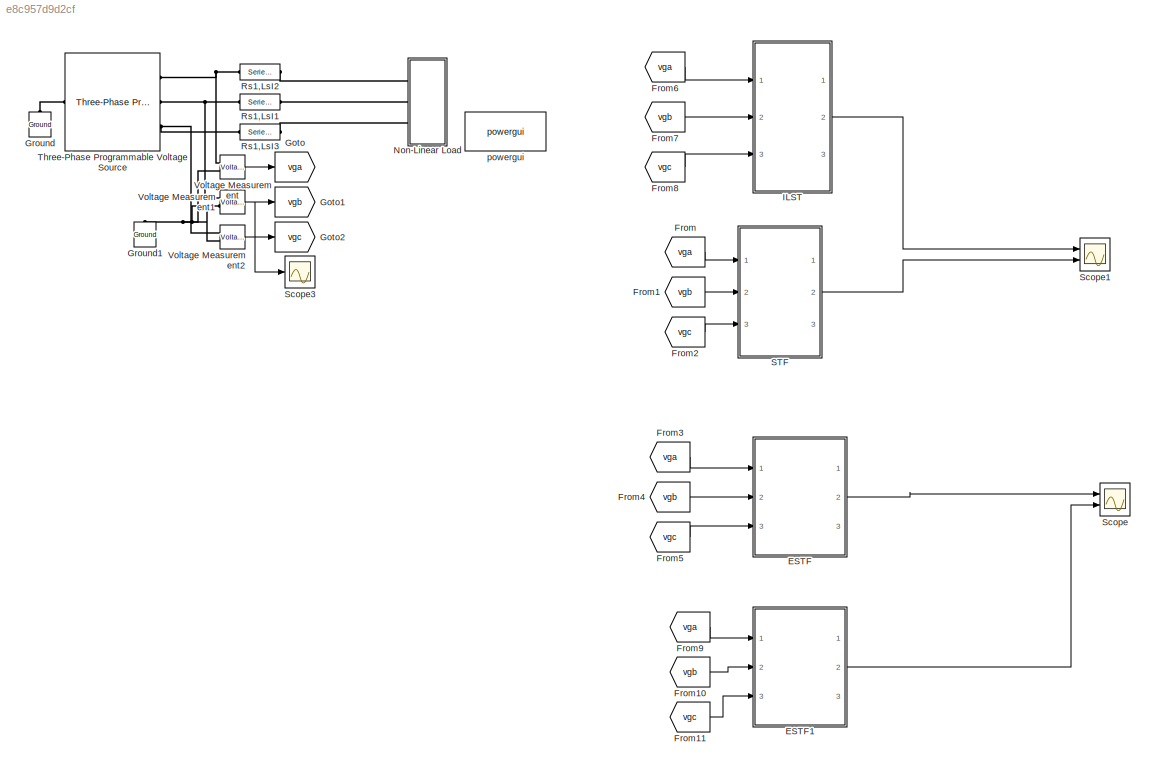
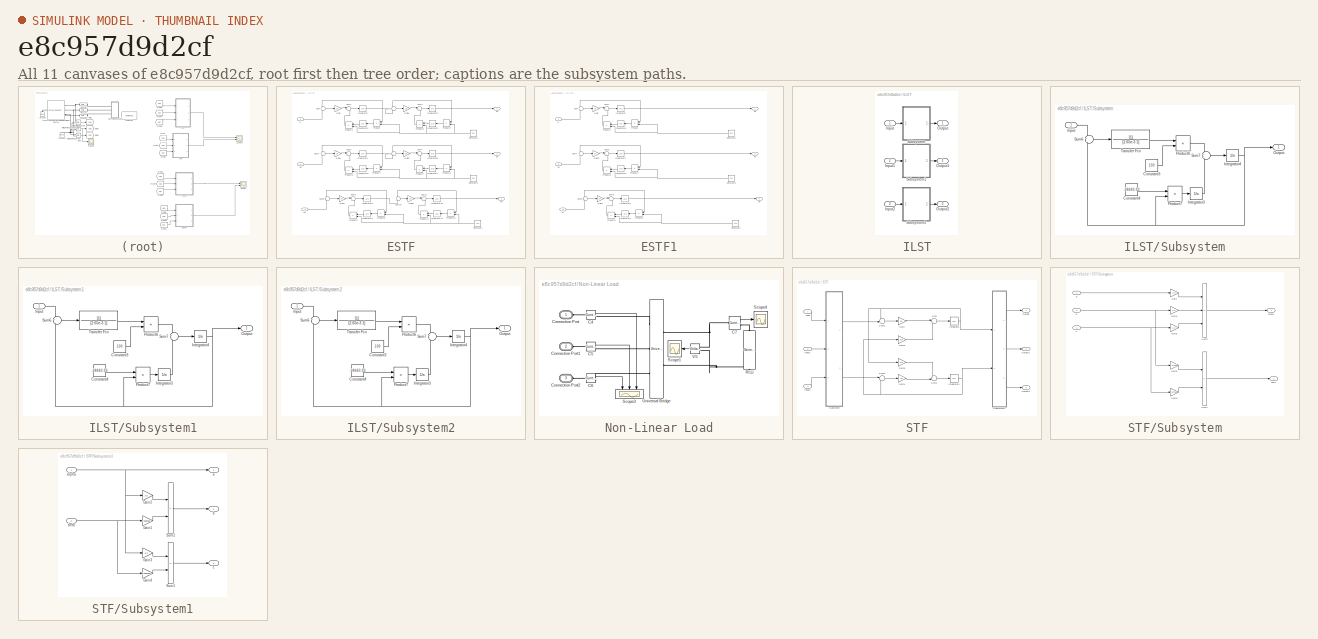
[diagram: thumbnail index - all 11 canvases of the model, root first then tree order]
MODEL slx_e8c957d9d2cf
KIND model
CONFIG AbsTol = auto
CONFIG EnableMultiTasking = off
CONFIG FixedStep = auto
CONFIG MaxStep = auto
CONFIG MinStep = auto
CONFIG RelTol = 1e-3
CONFIG SampleTimeConstraint = Unconstrained
CONFIG SolverName = VariableStepAuto
CONFIG StartTime = 0.0
CONFIG StopTime = 3
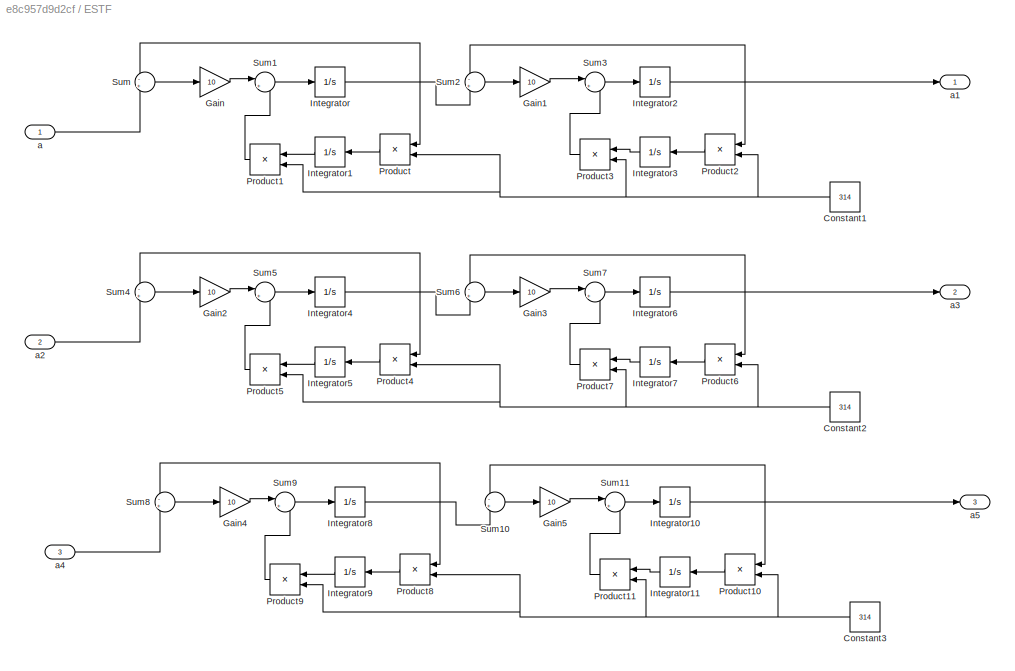
BLOCK [SubSystem] ESTF
  Ports = [3, 3]
  RequestExecContextInheritance = off
BLOCK [Constant] ESTF/Constant1
  NameLocation = top
  Value = 314
BLOCK [Constant] ESTF/Constant2
  NameLocation = top
  Value = 314
BLOCK [Constant] ESTF/Constant3
  NameLocation = top
  Value = 314
BLOCK [Gain] ESTF/Gain
  Gain = 10
BLOCK [Gain] ESTF/Gain1
  Gain = 10
BLOCK [Gain] ESTF/Gain2
  Gain = 10
BLOCK [Gain] ESTF/Gain3
  Gain = 10
BLOCK [Gain] ESTF/Gain4
  Gain = 10
BLOCK [Gain] ESTF/Gain5
  Gain = 10
BLOCK [Integrator] ESTF/Integrator
  Ports = [1, 1]
BLOCK [Integrator] ESTF/Integrator1
  NameLocation = top
  Ports = [1, 1]
BLOCK [Integrator] ESTF/Integrator10
  Ports = [1, 1]
BLOCK [Integrator] ESTF/Integrator11
  NameLocation = top
  Ports = [1, 1]
BLOCK [Integrator] ESTF/Integrator2
  Ports = [1, 1]
BLOCK [Integrator] ESTF/Integrator3
  NameLocation = top
  Ports = [1, 1]
BLOCK [Integrator] ESTF/Integrator4
  Ports = [1, 1]
BLOCK [Integrator] ESTF/Integrator5
  NameLocation = top
  Ports = [1, 1]
BLOCK [Integrator] ESTF/Integrator6
  Ports = [1, 1]
BLOCK [Integrator] ESTF/Integrator7
  NameLocation = top
  Ports = [1, 1]
BLOCK [Integrator] ESTF/Integrator8
  Ports = [1, 1]
BLOCK [Integrator] ESTF/Integrator9
  NameLocation = top
  Ports = [1, 1]
BLOCK [Product] ESTF/Product
  NameLocation = top
  Ports = [2, 1]
BLOCK [Product] ESTF/Product1
  NameLocation = top
  Ports = [2, 1]
BLOCK [Product] ESTF/Product10
  NameLocation = top
  Ports = [2, 1]
BLOCK [Product] ESTF/Product11
  NameLocation = top
  Ports = [2, 1]
BLOCK [Product] ESTF/Product2
  NameLocation = top
  Ports = [2, 1]
BLOCK [Product] ESTF/Product3
  NameLocation = top
  Ports = [2, 1]
BLOCK [Product] ESTF/Product4
  NameLocation = top
  Ports = [2, 1]
BLOCK [Product] ESTF/Product5
  NameLocation = top
  Ports = [2, 1]
BLOCK [Product] ESTF/Product6
  NameLocation = top
  Ports = [2, 1]
BLOCK [Product] ESTF/Product7
  NameLocation = top
  Ports = [2, 1]
BLOCK [Product] ESTF/Product8
  NameLocation = top
  Ports = [2, 1]
BLOCK [Product] ESTF/Product9
  NameLocation = top
  Ports = [2, 1]
BLOCK [Sum] ESTF/Sum
  Inputs = -+
  Ports = [2, 1]
BLOCK [Sum] ESTF/Sum1
  Inputs = |+-
  Ports = [2, 1]
BLOCK [Sum] ESTF/Sum10
  Inputs = -+
  Ports = [2, 1]
BLOCK [Sum] ESTF/Sum11
  Inputs = |+-
  Ports = [2, 1]
BLOCK [Sum] ESTF/Sum2
  Inputs = -+
  Ports = [2, 1]
BLOCK [Sum] ESTF/Sum3
  Inputs = |+-
  Ports = [2, 1]
BLOCK [Sum] ESTF/Sum4
  Inputs = -+
  Ports = [2, 1]
BLOCK [Sum] ESTF/Sum5
  Inputs = |+-
  Ports = [2, 1]
BLOCK [Sum] ESTF/Sum6
  Inputs = -+
  Ports = [2, 1]
BLOCK [Sum] ESTF/Sum7
  Inputs = |+-
  Ports = [2, 1]
BLOCK [Sum] ESTF/Sum8
  Inputs = -+
  Ports = [2, 1]
BLOCK [Sum] ESTF/Sum9
  Inputs = |+-
  Ports = [2, 1]
BLOCK [Inport] ESTF/a
BLOCK [Outport] ESTF/a1
BLOCK [Inport] ESTF/a2
  Port = 2
BLOCK [Outport] ESTF/a3
  Port = 2
BLOCK [Inport] ESTF/a4
  Port = 3
BLOCK [Outport] ESTF/a5
  Port = 3
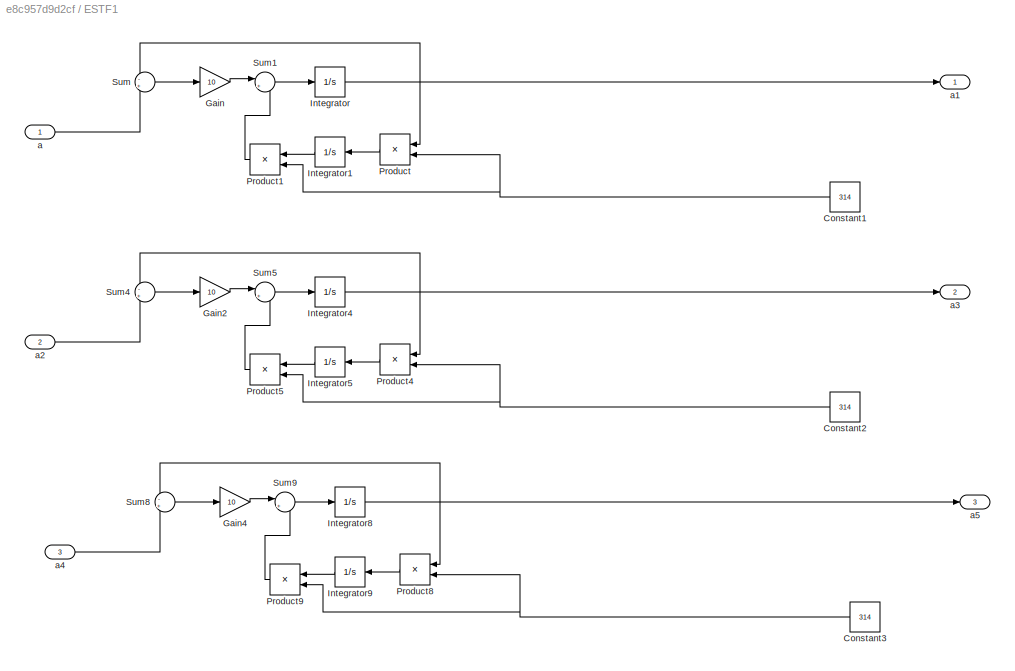
BLOCK [SubSystem] ESTF1
  Ports = [3, 3]
  RequestExecContextInheritance = off
BLOCK [Constant] ESTF1/Constant1
  NameLocation = top
  Value = 314
BLOCK [Constant] ESTF1/Constant2
  NameLocation = top
  Value = 314
BLOCK [Constant] ESTF1/Constant3
  NameLocation = top
  Value = 314
BLOCK [Gain] ESTF1/Gain
  Gain = 10
BLOCK [Gain] ESTF1/Gain2
  Gain = 10
BLOCK [Gain] ESTF1/Gain4
  Gain = 10
BLOCK [Integrator] ESTF1/Integrator
  Ports = [1, 1]
BLOCK [Integrator] ESTF1/Integrator1
  NameLocation = top
  Ports = [1, 1]
BLOCK [Integrator] ESTF1/Integrator4
  Ports = [1, 1]
BLOCK [Integrator] ESTF1/Integrator5
  NameLocation = top
  Ports = [1, 1]
BLOCK [Integrator] ESTF1/Integrator8
  Ports = [1, 1]
BLOCK [Integrator] ESTF1/Integrator9
  NameLocation = top
  Ports = [1, 1]
BLOCK [Product] ESTF1/Product
  NameLocation = top
  Ports = [2, 1]
BLOCK [Product] ESTF1/Product1
  NameLocation = top
  Ports = [2, 1]
BLOCK [Product] ESTF1/Product4
  NameLocation = top
  Ports = [2, 1]
BLOCK [Product] ESTF1/Product5
  NameLocation = top
  Ports = [2, 1]
BLOCK [Product] ESTF1/Product8
  NameLocation = top
  Ports = [2, 1]
BLOCK [Product] ESTF1/Product9
  NameLocation = top
  Ports = [2, 1]
BLOCK [Sum] ESTF1/Sum
  Inputs = -+
  Ports = [2, 1]
BLOCK [Sum] ESTF1/Sum1
  Inputs = |+-
  Ports = [2, 1]
BLOCK [Sum] ESTF1/Sum4
  Inputs = -+
  Ports = [2, 1]
BLOCK [Sum] ESTF1/Sum5
  Inputs = |+-
  Ports = [2, 1]
BLOCK [Sum] ESTF1/Sum8
  Inputs = -+
  Ports = [2, 1]
BLOCK [Sum] ESTF1/Sum9
  Inputs = |+-
  Ports = [2, 1]
BLOCK [Inport] ESTF1/a
BLOCK [Outport] ESTF1/a1
BLOCK [Inport] ESTF1/a2
  Port = 2
BLOCK [Outport] ESTF1/a3
  Port = 2
BLOCK [Inport] ESTF1/a4
  Port = 3
BLOCK [Outport] ESTF1/a5
  Port = 3
BLOCK [From] From
  GotoTag = vga
BLOCK [From] From1
  GotoTag = vgb
BLOCK [From] From10
  GotoTag = vgb
BLOCK [From] From11
  GotoTag = vgc
BLOCK [From] From2
  GotoTag = vgc
BLOCK [From] From3
  GotoTag = vga
BLOCK [From] From4
  GotoTag = vgb
BLOCK [From] From5
  GotoTag = vgc
BLOCK [From] From6
  GotoTag = vga
BLOCK [From] From7
  GotoTag = vgb
BLOCK [From] From8
  GotoTag = vgc
BLOCK [From] From9
  GotoTag = vga
BLOCK [Goto] Goto
  GotoTag = vga
BLOCK [Goto] Goto1
  GotoTag = vgb
BLOCK [Goto] Goto2
  GotoTag = vgc
BLOCK [Reference] Ground  REF=spsGroundLib/Ground
  NameLocation = right
  Ports = [0, 0, 0, 0, 0, 1]
  SourceBlock = spsGroundLib/Ground
  SourceProductBaseCode = PS
  SourceType = Ground
BLOCK [Reference] Ground1  REF=spsGroundLib/Ground
  NameLocation = right
  Ports = [0, 0, 0, 0, 0, 1]
  SourceBlock = spsGroundLib/Ground
  SourceProductBaseCode = PS
  SourceType = Ground
BLOCK [SubSystem] ILST
  Ports = [3, 3]
  RequestExecContextInheritance = off
BLOCK [Inport] ILST/Input
BLOCK [Inport] ILST/Input1
  Port = 2
BLOCK [Inport] ILST/Input2
  Port = 3
BLOCK [Outport] ILST/Output
BLOCK [Outport] ILST/Output1
  Port = 2
BLOCK [Outport] ILST/Output2
  Port = 3
BLOCK [SubSystem] ILST/Subsystem
  Ports = [1, 1]
  RequestExecContextInheritance = off
BLOCK [Constant] ILST/Subsystem/Constant3
  Value = 100
BLOCK [Constant] ILST/Subsystem/Constant4
  Value = -98683.93
BLOCK [Inport] ILST/Subsystem/Input
BLOCK [Integrator] ILST/Subsystem/Integrator3
  Ports = [1, 1]
BLOCK [Integrator] ILST/Subsystem/Integrator4
  Ports = [1, 1]
BLOCK [Outport] ILST/Subsystem/Output
BLOCK [Product] ILST/Subsystem/Product6
  Ports = [2, 1]
  RndMeth = Zero
BLOCK [Product] ILST/Subsystem/Product7
  Ports = [2, 1]
  RndMeth = Zero
BLOCK [Sum] ILST/Subsystem/Sum6
  Inputs = +-
  Ports = [2, 1]
BLOCK [Sum] ILST/Subsystem/Sum7
  Ports = [2, 1]
BLOCK [TransferFcn] ILST/Subsystem/Transfer Fcn
  Denominator = [2.65e-3 1]
BLOCK [SubSystem] ILST/Subsystem1
  Ports = [1, 1]
  RequestExecContextInheritance = off
BLOCK [Constant] ILST/Subsystem1/Constant3
  Value = 100
BLOCK [Constant] ILST/Subsystem1/Constant4
  Value = -98683.93
BLOCK [Inport] ILST/Subsystem1/Input
BLOCK [Integrator] ILST/Subsystem1/Integrator3
  Ports = [1, 1]
BLOCK [Integrator] ILST/Subsystem1/Integrator4
  Ports = [1, 1]
BLOCK [Outport] ILST/Subsystem1/Output
BLOCK [Product] ILST/Subsystem1/Product6
  Ports = [2, 1]
  RndMeth = Zero
BLOCK [Product] ILST/Subsystem1/Product7
  Ports = [2, 1]
  RndMeth = Zero
BLOCK [Sum] ILST/Subsystem1/Sum6
  Inputs = +-
  Ports = [2, 1]
BLOCK [Sum] ILST/Subsystem1/Sum7
  Ports = [2, 1]
BLOCK [TransferFcn] ILST/Subsystem1/Transfer Fcn
  Denominator = [2.65e-3 1]
BLOCK [SubSystem] ILST/Subsystem2
  Ports = [1, 1]
  RequestExecContextInheritance = off
BLOCK [Constant] ILST/Subsystem2/Constant3
  Value = 100
BLOCK [Constant] ILST/Subsystem2/Constant4
  Value = -98683.93
BLOCK [Inport] ILST/Subsystem2/Input
BLOCK [Integrator] ILST/Subsystem2/Integrator3
  Ports = [1, 1]
BLOCK [Integrator] ILST/Subsystem2/Integrator4
  Ports = [1, 1]
BLOCK [Outport] ILST/Subsystem2/Output
BLOCK [Product] ILST/Subsystem2/Product6
  Ports = [2, 1]
  RndMeth = Zero
BLOCK [Product] ILST/Subsystem2/Product7
  Ports = [2, 1]
  RndMeth = Zero
BLOCK [Sum] ILST/Subsystem2/Sum6
  Inputs = +-
  Ports = [2, 1]
BLOCK [Sum] ILST/Subsystem2/Sum7
  Ports = [2, 1]
BLOCK [TransferFcn] ILST/Subsystem2/Transfer Fcn
  Denominator = [2.65e-3 1]
BLOCK [SubSystem] Non-Linear Load
  Ports = [0, 0, 0, 0, 0, 3]
  RequestExecContextInheritance = off
BLOCK [Reference] Non-Linear Load/C4  REF=spsCurrentMeasurementLib/Current Measurement
  Ports = [0, 1, 0, 0, 0, 1, 1]
  SourceBlock = spsCurrentMeasurementLib/Current Measurement
  SourceProductBaseCode = PS
  SourceType = Current Measurement
BLOCK [Reference] Non-Linear Load/C5  REF=spsCurrentMeasurementLib/Current Measurement
  Ports = [0, 1, 0, 0, 0, 1, 1]
  SourceBlock = spsCurrentMeasurementLib/Current Measurement
  SourceProductBaseCode = PS
  SourceType = Current Measurement
BLOCK [Reference] Non-Linear Load/C6  REF=spsCurrentMeasurementLib/Current Measurement
  Ports = [0, 1, 0, 0, 0, 1, 1]
  SourceBlock = spsCurrentMeasurementLib/Current Measurement
  SourceProductBaseCode = PS
  SourceType = Current Measurement
BLOCK [Reference] Non-Linear Load/C7  REF=spsCurrentMeasurementLib/Current Measurement
  Ports = [0, 1, 0, 0, 0, 1, 1]
  SourceBlock = spsCurrentMeasurementLib/Current Measurement
  SourceProductBaseCode = PS
  SourceType = Current Measurement
BLOCK [PMIOPort] Non-Linear Load/Connection Port
  Side = Left
  Tag = PMCPort
BLOCK [PMIOPort] Non-Linear Load/Connection Port1
  Port = 2
  Side = Left
  Tag = PMCPort
BLOCK [PMIOPort] Non-Linear Load/Connection Port2
  Port = 3
  Side = Left
  Tag = PMCPort
BLOCK [Reference] Non-Linear Load/Rl,Ll  REF=spsSeriesRLCBranchLib/Series RLC Branch
  NameLocation = left
  Ports = [0, 0, 0, 0, 0, 1, 1]
  SourceBlock = spsSeriesRLCBranchLib/Series RLC Branch
  SourceProductBaseCode = PS
  SourceType = Series RLC Branch
BLOCK [Scope] Non-Linear Load/Scope1
  Floating = off
  NumInputPorts = 1
  Ports = [1]
  ScopeSpecificationString = Simulink.scopes.TimeScopeBlockCfg('CurrentConfiguration', extmgr.ConfigurationSet(extmgr.Configuration('Core','General UI',true),extmgr.Configuration('Core','Source UI',true),extmgr.Configuration('Sources','WiredSimulink',true,'DataLogging',true,'DataLoggingVariableName','sourcect21','DataLoggingSaveFormat','StructureWithTime','DataLoggingDecimation','1','DataLoggingDecimateData',true),extmgr.Conf...<+1757ch>
BLOCK [Scope] Non-Linear Load/Scope3
  Floating = off
  NameLocation = left
  NumInputPorts = 3
  Ports = [3]
  ScopeSpecificationString = Simulink.scopes.TimeScopeBlockCfg('CurrentConfiguration', extmgr.ConfigurationSet(extmgr.Configuration('Core','General UI',true),extmgr.Configuration('Core','Source UI',true),extmgr.Configuration('Sources','WiredSimulink',true,'DataLogging',true,'DataLoggingVariableName','sourcect27','DataLoggingSaveFormat','StructureWithTime','DataLoggingDecimation','1','DataLoggingDecimateData',true),extmgr.Conf...<+3096ch>
BLOCK [Scope] Non-Linear Load/Scope4
  Floating = off
  NumInputPorts = 1
  Ports = [1]
  ScopeSpecificationString = Simulink.scopes.TimeScopeBlockCfg('CurrentConfiguration', extmgr.ConfigurationSet(extmgr.Configuration('Core','General UI',true),extmgr.Configuration('Core','Source UI',true),extmgr.Configuration('Sources','WiredSimulink',true,'DataLogging',true,'DataLoggingVariableName','sourcect3','DataLoggingSaveFormat','StructureWithTime','DataLoggingDecimation','1','DataLoggingDecimateData',true),extmgr.Confi...<+1775ch>
BLOCK [Reference] Non-Linear Load/Universal Bridge  REF=spsUniversalBridgeLib/Universal Bridge
  Ports = [0, 0, 0, 0, 0, 3, 2]
  SourceBlock = spsUniversalBridgeLib/Universal Bridge
  SourceProductBaseCode = PS
  SourceType = Universal Bridge
BLOCK [Reference] Non-Linear Load/V5  REF=spsVoltageMeasurementLib/Voltage Measurement
  Ports = [0, 1, 0, 0, 0, 2]
  SourceBlock = spsVoltageMeasurementLib/Voltage Measurement
  SourceProductBaseCode = PS
  SourceType = Voltage Measurement
BLOCK [Reference] Rs1,LsI1  REF=spsSeriesRLCBranchLib/Series RLC Branch
  Ports = [0, 0, 0, 0, 0, 1, 1]
  SourceBlock = spsSeriesRLCBranchLib/Series RLC Branch
  SourceProductBaseCode = PS
  SourceType = Series RLC Branch
BLOCK [Reference] Rs1,LsI2  REF=spsSeriesRLCBranchLib/Series RLC Branch
  Ports = [0, 0, 0, 0, 0, 1, 1]
  SourceBlock = spsSeriesRLCBranchLib/Series RLC Branch
  SourceProductBaseCode = PS
  SourceType = Series RLC Branch
BLOCK [Reference] Rs1,LsI3  REF=spsSeriesRLCBranchLib/Series RLC Branch
  Ports = [0, 0, 0, 0, 0, 1, 1]
  SourceBlock = spsSeriesRLCBranchLib/Series RLC Branch
  SourceProductBaseCode = PS
  SourceType = Series RLC Branch
BLOCK [SubSystem] STF
  Ports = [3, 3]
  RequestExecContextInheritance = off
BLOCK [Gain] STF/Gain
  Gain = 50
BLOCK [Gain] STF/Gain1
  Gain = 50
BLOCK [Gain] STF/Gain2
  Gain = 314
BLOCK [Gain] STF/Gain3
  Gain = 314
BLOCK [Inport] STF/Input
BLOCK [Inport] STF/Input1
  Port = 2
BLOCK [Inport] STF/Input2
  Port = 3
BLOCK [Integrator] STF/Integrator
  Ports = [1, 1]
BLOCK [Integrator] STF/Integrator1
  Ports = [1, 1]
BLOCK [Outport] STF/Output
BLOCK [Outport] STF/Output1
  Port = 2
BLOCK [Outport] STF/Output2
  Port = 3
BLOCK [SubSystem] STF/Subsystem
  Ports = [3, 2]
  RequestExecContextInheritance = off
BLOCK [Gain] STF/Subsystem/Gain
  Gain = 2/3
BLOCK [Gain] STF/Subsystem/Gain1
  Gain = 1/3
BLOCK [Gain] STF/Subsystem/Gain2
  Gain = 1/3
BLOCK [Gain] STF/Subsystem/Gain3
  Gain = .57735
BLOCK [Gain] STF/Subsystem/Gain4
  Gain = .57735
BLOCK [Sum] STF/Subsystem/Sum1
  IconShape = rectangular
  Inputs = +-
  Ports = [2, 1]
BLOCK [Sum] STF/Subsystem/Sum2
  IconShape = rectangular
  Inputs = +--
  Ports = [3, 1]
BLOCK [Inport] STF/Subsystem/a
BLOCK [Outport] STF/Subsystem/alpha
BLOCK [Inport] STF/Subsystem/b
  Port = 2
BLOCK [Outport] STF/Subsystem/beta
  Port = 2
BLOCK [Inport] STF/Subsystem/c
  Port = 3
BLOCK [SubSystem] STF/Subsystem1
  Ports = [2, 3]
  RequestExecContextInheritance = off
BLOCK [Gain] STF/Subsystem1/Gain1
  Gain = 0.866025
BLOCK [Gain] STF/Subsystem1/Gain2
  Gain = 1/2
BLOCK [Gain] STF/Subsystem1/Gain3
  Gain = 1/2
BLOCK [Gain] STF/Subsystem1/Gain4
  Gain = 0.866025
BLOCK [Sum] STF/Subsystem1/Sum1
  IconShape = rectangular
  Inputs = --
  Ports = [2, 1]
BLOCK [Sum] STF/Subsystem1/Sum2
  IconShape = rectangular
  Inputs = -+
  Ports = [2, 1]
BLOCK [Outport] STF/Subsystem1/a
BLOCK [Inport] STF/Subsystem1/alpha
BLOCK [Outport] STF/Subsystem1/b
  Port = 2
BLOCK [Inport] STF/Subsystem1/beta
  Port = 2
BLOCK [Outport] STF/Subsystem1/c
  Port = 3
BLOCK [Sum] STF/Sum
  Inputs = |+-
  Ports = [2, 1]
BLOCK [Sum] STF/Sum1
  Inputs = ++|
  Ports = [2, 1]
BLOCK [Sum] STF/Sum2
  Inputs = -+|
  Ports = [2, 1]
BLOCK [Sum] STF/Sum3
  Inputs = |+-
  Ports = [2, 1]
BLOCK [Scope] Scope
  Floating = off
  NumInputPorts = 2
  Ports = [2]
  ScopeSpecificationString = Simulink.scopes.TimeScopeBlockCfg('CurrentConfiguration', extmgr.ConfigurationSet(extmgr.Configuration('Core','General UI',true),extmgr.Configuration('Core','Source UI',true),extmgr.Configuration('Sources','WiredSimulink',true,'DataLoggingVariableName','ScopeData1'),extmgr.Configuration('Visuals','Time Domain',true,'SerializedDisplays',{struct('MinYLimReal','297.14024','MaxYLimReal','330.79082','Y...<+2119ch>
BLOCK [Scope] Scope1
  Floating = off
  NumInputPorts = 2
  Ports = [2]
  ScopeSpecificationString = Simulink.scopes.TimeScopeBlockCfg('CurrentConfiguration', extmgr.ConfigurationSet(extmgr.Configuration('Core','General UI',true),extmgr.Configuration('Core','Source UI',true),extmgr.Configuration('Sources','WiredSimulink',true,'DataLoggingVariableName','ScopeData2'),extmgr.Configuration('Visuals','Time Domain',true,'SerializedDisplays',{struct('MinYLimReal','-431.58838','MaxYLimReal','430.53559','...<+2778ch>
BLOCK [Scope] Scope3
  Floating = off
  NumInputPorts = 1
  Ports = [1]
  ScopeSpecificationString = Simulink.scopes.TimeScopeBlockCfg('CurrentConfiguration', extmgr.ConfigurationSet(extmgr.Configuration('Core','General UI',true),extmgr.Configuration('Core','Source UI',true),extmgr.Configuration('Sources','WiredSimulink',true,'DataLoggingVariableName','ScopeData4'),extmgr.Configuration('Visuals','Time Domain',true,'SerializedDisplays',{struct('MinYLimReal','310.39127','MaxYLimReal','332.74342','Y...<+1437ch>
BLOCK [Reference] Three-Phase Programmable Voltage Source  REF=spsThreePhaseProgrammableVoltageSourceLib/Three-Phase
Programmable
Voltage Source
  Ports = [0, 0, 0, 0, 0, 1, 3]
  SourceBlock = spsThreePhaseProgrammableVoltageSourceLib/Three-Phase\nProgrammable\nVoltage Source
  SourceProductBaseCode = PS
  SourceType = Three-Phase Programmable Voltage Source
BLOCK [Reference] Voltage Measurement  REF=spsVoltageMeasurementLib/Voltage Measurement
  Ports = [0, 1, 0, 0, 0, 2]
  SourceBlock = spsVoltageMeasurementLib/Voltage Measurement
  SourceProductBaseCode = PS
  SourceType = Voltage Measurement
  UserDataPersistent = on
BLOCK [Reference] Voltage Measurement1  REF=spsVoltageMeasurementLib/Voltage Measurement
  Ports = [0, 1, 0, 0, 0, 2]
  SourceBlock = spsVoltageMeasurementLib/Voltage Measurement
  SourceProductBaseCode = PS
  SourceType = Voltage Measurement
  UserDataPersistent = on
BLOCK [Reference] Voltage Measurement2  REF=spsVoltageMeasurementLib/Voltage Measurement
  Ports = [0, 1, 0, 0, 0, 2]
  SourceBlock = spsVoltageMeasurementLib/Voltage Measurement
  SourceProductBaseCode = PS
  SourceType = Voltage Measurement
  UserDataPersistent = on
BLOCK [Reference] powergui  REF=spspowerguiLib/powergui
  Ports = []
  Priority = 1
  SourceBlock = spspowerguiLib/powergui
  SourceProductBaseCode = PS
  SourceType = PSB option menu block
NET ESTF/Constant1:1 -> ESTF/Product1:2, ESTF/Product2:2, ESTF/Product3:2, ESTF/Product:2
NET ESTF/Constant2:1 -> ESTF/Product4:2, ESTF/Product5:2, ESTF/Product6:2, ESTF/Product7:2
NET ESTF/Constant3:1 -> ESTF/Product10:2, ESTF/Product11:2, ESTF/Product8:2, ESTF/Product9:2
LINE ESTF/Gain1:1 -> ESTF/Sum3:1
LINE ESTF/Gain2:1 -> ESTF/Sum5:1
LINE ESTF/Gain3:1 -> ESTF/Sum7:1
LINE ESTF/Gain4:1 -> ESTF/Sum9:1
LINE ESTF/Gain5:1 -> ESTF/Sum11:1
LINE ESTF/Gain:1 -> ESTF/Sum1:1
NET ESTF/Integrator10:1 -> ESTF/Product10:1, ESTF/Sum10:1, ESTF/a5:1
LINE ESTF/Integrator11:1 -> ESTF/Product11:1
LINE ESTF/Integrator1:1 -> ESTF/Product1:1
NET ESTF/Integrator2:1 -> ESTF/Product2:1, ESTF/Sum2:1, ESTF/a1:1
LINE ESTF/Integrator3:1 -> ESTF/Product3:1
NET ESTF/Integrator4:1 -> ESTF/Product4:1, ESTF/Sum4:1, ESTF/Sum6:2
LINE ESTF/Integrator5:1 -> ESTF/Product5:1
NET ESTF/Integrator6:1 -> ESTF/Product6:1, ESTF/Sum6:1, ESTF/a3:1
LINE ESTF/Integrator7:1 -> ESTF/Product7:1
NET ESTF/Integrator8:1 -> ESTF/Product8:1, ESTF/Sum10:2, ESTF/Sum8:1
LINE ESTF/Integrator9:1 -> ESTF/Product9:1
NET ESTF/Integrator:1 -> ESTF/Product:1, ESTF/Sum2:2, ESTF/Sum:1
LINE ESTF/Product10:1 -> ESTF/Integrator11:1
LINE ESTF/Product11:1 -> ESTF/Sum11:2
LINE ESTF/Product1:1 -> ESTF/Sum1:2
LINE ESTF/Product2:1 -> ESTF/Integrator3:1
LINE ESTF/Product3:1 -> ESTF/Sum3:2
LINE ESTF/Product4:1 -> ESTF/Integrator5:1
LINE ESTF/Product5:1 -> ESTF/Sum5:2
LINE ESTF/Product6:1 -> ESTF/Integrator7:1
LINE ESTF/Product7:1 -> ESTF/Sum7:2
LINE ESTF/Product8:1 -> ESTF/Integrator9:1
LINE ESTF/Product9:1 -> ESTF/Sum9:2
LINE ESTF/Product:1 -> ESTF/Integrator1:1
LINE ESTF/Sum10:1 -> ESTF/Gain5:1
LINE ESTF/Sum11:1 -> ESTF/Integrator10:1
LINE ESTF/Sum1:1 -> ESTF/Integrator:1
LINE ESTF/Sum2:1 -> ESTF/Gain1:1
LINE ESTF/Sum3:1 -> ESTF/Integrator2:1
LINE ESTF/Sum4:1 -> ESTF/Gain2:1
LINE ESTF/Sum5:1 -> ESTF/Integrator4:1
LINE ESTF/Sum6:1 -> ESTF/Gain3:1
LINE ESTF/Sum7:1 -> ESTF/Integrator6:1
LINE ESTF/Sum8:1 -> ESTF/Gain4:1
LINE ESTF/Sum9:1 -> ESTF/Integrator8:1
LINE ESTF/Sum:1 -> ESTF/Gain:1
LINE ESTF/a2:1 -> ESTF/Sum4:2
LINE ESTF/a4:1 -> ESTF/Sum8:2
LINE ESTF/a:1 -> ESTF/Sum:2
NET ESTF1/Constant1:1 -> ESTF1/Product1:2, ESTF1/Product:2
NET ESTF1/Constant2:1 -> ESTF1/Product4:2, ESTF1/Product5:2
NET ESTF1/Constant3:1 -> ESTF1/Product8:2, ESTF1/Product9:2
LINE ESTF1/Gain2:1 -> ESTF1/Sum5:1
LINE ESTF1/Gain4:1 -> ESTF1/Sum9:1
LINE ESTF1/Gain:1 -> ESTF1/Sum1:1
LINE ESTF1/Integrator1:1 -> ESTF1/Product1:1
NET ESTF1/Integrator4:1 -> ESTF1/Product4:1, ESTF1/Sum4:1, ESTF1/a3:1
LINE ESTF1/Integrator5:1 -> ESTF1/Product5:1
NET ESTF1/Integrator8:1 -> ESTF1/Product8:1, ESTF1/Sum8:1, ESTF1/a5:1
LINE ESTF1/Integrator9:1 -> ESTF1/Product9:1
NET ESTF1/Integrator:1 -> ESTF1/Product:1, ESTF1/Sum:1, ESTF1/a1:1
LINE ESTF1/Product1:1 -> ESTF1/Sum1:2
LINE ESTF1/Product4:1 -> ESTF1/Integrator5:1
LINE ESTF1/Product5:1 -> ESTF1/Sum5:2
LINE ESTF1/Product8:1 -> ESTF1/Integrator9:1
LINE ESTF1/Product9:1 -> ESTF1/Sum9:2
LINE ESTF1/Product:1 -> ESTF1/Integrator1:1
LINE ESTF1/Sum1:1 -> ESTF1/Integrator:1
LINE ESTF1/Sum4:1 -> ESTF1/Gain2:1
LINE ESTF1/Sum5:1 -> ESTF1/Integrator4:1
LINE ESTF1/Sum8:1 -> ESTF1/Gain4:1
LINE ESTF1/Sum9:1 -> ESTF1/Integrator8:1
LINE ESTF1/Sum:1 -> ESTF1/Gain:1
LINE ESTF1/a2:1 -> ESTF1/Sum4:2
LINE ESTF1/a4:1 -> ESTF1/Sum8:2
LINE ESTF1/a:1 -> ESTF1/Sum:2
LINE ESTF1:2 -> Scope:2
LINE ESTF:2 -> Scope:1
LINE From10:1 -> ESTF1:2
LINE From11:1 -> ESTF1:3
LINE From1:1 -> STF:2
LINE From2:1 -> STF:3
LINE From3:1 -> ESTF:1
LINE From4:1 -> ESTF:2
LINE From5:1 -> ESTF:3
LINE From6:1 -> ILST:1
LINE From7:1 -> ILST:2
LINE From8:1 -> ILST:3
LINE From9:1 -> ESTF1:1
LINE From:1 -> STF:1
LINE ILST/Input1:1 -> ILST/Subsystem1:1
LINE ILST/Input2:1 -> ILST/Subsystem2:1
LINE ILST/Input:1 -> ILST/Subsystem:1
LINE ILST/Subsystem/Constant3:1 -> ILST/Subsystem/Product6:2
LINE ILST/Subsystem/Constant4:1 -> ILST/Subsystem/Product7:1
LINE ILST/Subsystem/Input:1 -> ILST/Subsystem/Sum6:1
LINE ILST/Subsystem/Integrator3:1 -> ILST/Subsystem/Sum7:2
NET ILST/Subsystem/Integrator4:1 -> ILST/Subsystem/Output:1, ILST/Subsystem/Product7:2, ILST/Subsystem/Sum6:2
LINE ILST/Subsystem/Product6:1 -> ILST/Subsystem/Sum7:1
LINE ILST/Subsystem/Product7:1 -> ILST/Subsystem/Integrator3:1
LINE ILST/Subsystem/Sum6:1 -> ILST/Subsystem/Transfer Fcn:1
LINE ILST/Subsystem/Sum7:1 -> ILST/Subsystem/Integrator4:1
LINE ILST/Subsystem/Transfer Fcn:1 -> ILST/Subsystem/Product6:1
LINE ILST/Subsystem1/Constant3:1 -> ILST/Subsystem1/Product6:2
LINE ILST/Subsystem1/Constant4:1 -> ILST/Subsystem1/Product7:1
LINE ILST/Subsystem1/Input:1 -> ILST/Subsystem1/Sum6:1
LINE ILST/Subsystem1/Integrator3:1 -> ILST/Subsystem1/Sum7:2
NET ILST/Subsystem1/Integrator4:1 -> ILST/Subsystem1/Output:1, ILST/Subsystem1/Product7:2, ILST/Subsystem1/Sum6:2
LINE ILST/Subsystem1/Product6:1 -> ILST/Subsystem1/Sum7:1
LINE ILST/Subsystem1/Product7:1 -> ILST/Subsystem1/Integrator3:1
LINE ILST/Subsystem1/Sum6:1 -> ILST/Subsystem1/Transfer Fcn:1
LINE ILST/Subsystem1/Sum7:1 -> ILST/Subsystem1/Integrator4:1
LINE ILST/Subsystem1/Transfer Fcn:1 -> ILST/Subsystem1/Product6:1
LINE ILST/Subsystem1:1 -> ILST/Output1:1
LINE ILST/Subsystem2/Constant3:1 -> ILST/Subsystem2/Product6:2
LINE ILST/Subsystem2/Constant4:1 -> ILST/Subsystem2/Product7:1
LINE ILST/Subsystem2/Input:1 -> ILST/Subsystem2/Sum6:1
LINE ILST/Subsystem2/Integrator3:1 -> ILST/Subsystem2/Sum7:2
NET ILST/Subsystem2/Integrator4:1 -> ILST/Subsystem2/Output:1, ILST/Subsystem2/Product7:2, ILST/Subsystem2/Sum6:2
LINE ILST/Subsystem2/Product6:1 -> ILST/Subsystem2/Sum7:1
LINE ILST/Subsystem2/Product7:1 -> ILST/Subsystem2/Integrator3:1
LINE ILST/Subsystem2/Sum6:1 -> ILST/Subsystem2/Transfer Fcn:1
LINE ILST/Subsystem2/Sum7:1 -> ILST/Subsystem2/Integrator4:1
LINE ILST/Subsystem2/Transfer Fcn:1 -> ILST/Subsystem2/Product6:1
LINE ILST/Subsystem2:1 -> ILST/Output2:1
LINE ILST/Subsystem:1 -> ILST/Output:1
LINE ILST:2 -> Scope1:1
LINE Non-Linear Load/C4:1 -> Non-Linear Load/Scope3:3
LINE Non-Linear Load/C5:1 -> Non-Linear Load/Scope3:2
LINE Non-Linear Load/C6:1 -> Non-Linear Load/Scope3:1
LINE Non-Linear Load/C7:1 -> Non-Linear Load/Scope4:1
LINE Non-Linear Load/V5:1 -> Non-Linear Load/Scope1:1
LINE STF/Gain1:1 -> STF/Sum1:2
LINE STF/Gain2:1 -> STF/Sum:2
LINE STF/Gain3:1 -> STF/Sum1:1
LINE STF/Gain:1 -> STF/Sum:1
LINE STF/Input1:1 -> STF/Subsystem:2
LINE STF/Input2:1 -> STF/Subsystem:3
LINE STF/Input:1 -> STF/Subsystem:1
NET STF/Integrator1:1 -> STF/Gain2:1, STF/Subsystem1:2, STF/Sum3:2
NET STF/Integrator:1 -> STF/Gain3:1, STF/Subsystem1:1, STF/Sum2:1
LINE STF/Subsystem/Gain1:1 -> STF/Subsystem/Sum2:2
LINE STF/Subsystem/Gain2:1 -> STF/Subsystem/Sum2:3
LINE STF/Subsystem/Gain3:1 -> STF/Subsystem/Sum1:1
LINE STF/Subsystem/Gain4:1 -> STF/Subsystem/Sum1:2
LINE STF/Subsystem/Gain:1 -> STF/Subsystem/Sum2:1
LINE STF/Subsystem/Sum1:1 -> STF/Subsystem/beta:1
LINE STF/Subsystem/Sum2:1 -> STF/Subsystem/alpha:1
LINE STF/Subsystem/a:1 -> STF/Subsystem/Gain:1
NET STF/Subsystem/b:1 -> STF/Subsystem/Gain1:1, STF/Subsystem/Gain3:1
NET STF/Subsystem/c:1 -> STF/Subsystem/Gain2:1, STF/Subsystem/Gain4:1
LINE STF/Subsystem1/Gain1:1 -> STF/Subsystem1/Sum2:2
LINE STF/Subsystem1/Gain2:1 -> STF/Subsystem1/Sum2:1
LINE STF/Subsystem1/Gain3:1 -> STF/Subsystem1/Sum1:1
LINE STF/Subsystem1/Gain4:1 -> STF/Subsystem1/Sum1:2
LINE STF/Subsystem1/Sum1:1 -> STF/Subsystem1/c:1
LINE STF/Subsystem1/Sum2:1 -> STF/Subsystem1/b:1
NET STF/Subsystem1/alpha:1 -> STF/Subsystem1/Gain2:1, STF/Subsystem1/Gain3:1, STF/Subsystem1/a:1
NET STF/Subsystem1/beta:1 -> STF/Subsystem1/Gain1:1, STF/Subsystem1/Gain4:1
LINE STF/Subsystem1:1 -> STF/Output:1
LINE STF/Subsystem1:2 -> STF/Output1:1
LINE STF/Subsystem1:3 -> STF/Output2:1
LINE STF/Subsystem:1 -> STF/Sum2:2
LINE STF/Subsystem:2 -> STF/Sum3:1
LINE STF/Sum1:1 -> STF/Integrator1:1
LINE STF/Sum2:1 -> STF/Gain:1
LINE STF/Sum3:1 -> STF/Gain1:1
LINE STF/Sum:1 -> STF/Integrator:1
LINE STF:2 -> Scope1:2
NET Voltage Measurement1:1 -> Goto1:1, Scope3:1
LINE Voltage Measurement2:1 -> Goto2:1
LINE Voltage Measurement:1 -> Goto:1
PNET net1: Ground1:LConn1 -- Voltage Measurement1:LConn2 -- Voltage Measurement2:LConn2 -- Voltage Measurement:LConn2
PLINE Ground:LConn1 -- Three-Phase Programmable Voltage Source:LConn1
PLINE Non-Linear Load/C4:LConn1 -- Non-Linear Load/Connection Port:RConn1
PLINE Non-Linear Load/C4:RConn1 -- Non-Linear Load/Universal Bridge:LConn1
PLINE Non-Linear Load/C5:LConn1 -- Non-Linear Load/Connection Port1:RConn1
PLINE Non-Linear Load/C5:RConn1 -- Non-Linear Load/Universal Bridge:LConn2
PLINE Non-Linear Load/C6:LConn1 -- Non-Linear Load/Connection Port2:RConn1
PLINE Non-Linear Load/C6:RConn1 -- Non-Linear Load/Universal Bridge:LConn3
PNET net2: Non-Linear Load/C7:LConn1 -- Non-Linear Load/Universal Bridge:RConn1 -- Non-Linear Load/V5:LConn1
PLINE Non-Linear Load/C7:RConn1 -- Non-Linear Load/Rl,Ll:LConn1
PNET net3: Non-Linear Load/Rl,Ll:RConn1 -- Non-Linear Load/Universal Bridge:RConn2 -- Non-Linear Load/V5:LConn2
PLINE Non-Linear Load:LConn1 -- Rs1,LsI2:RConn1
PLINE Non-Linear Load:LConn2 -- Rs1,LsI1:RConn1
PLINE Non-Linear Load:LConn3 -- Rs1,LsI3:RConn1
PNET net4: Rs1,LsI1:LConn1 -- Three-Phase Programmable Voltage Source:RConn2 -- Voltage Measurement1:LConn1
PNET net5: Rs1,LsI2:LConn1 -- Three-Phase Programmable Voltage Source:RConn1 -- Voltage Measurement:LConn1
PNET net6: Rs1,LsI3:LConn1 -- Three-Phase Programmable Voltage Source:RConn3 -- Voltage Measurement2:LConn1
note: NET lines group one-source signal fan-out (src -> all destinations, sorted); 1:1 wires keep LINE; PNET lines group multi-terminal physical nets as a canonical sorted terminal list (undirected conserving connections); 2-terminal nets keep the pairwise PLINE form
